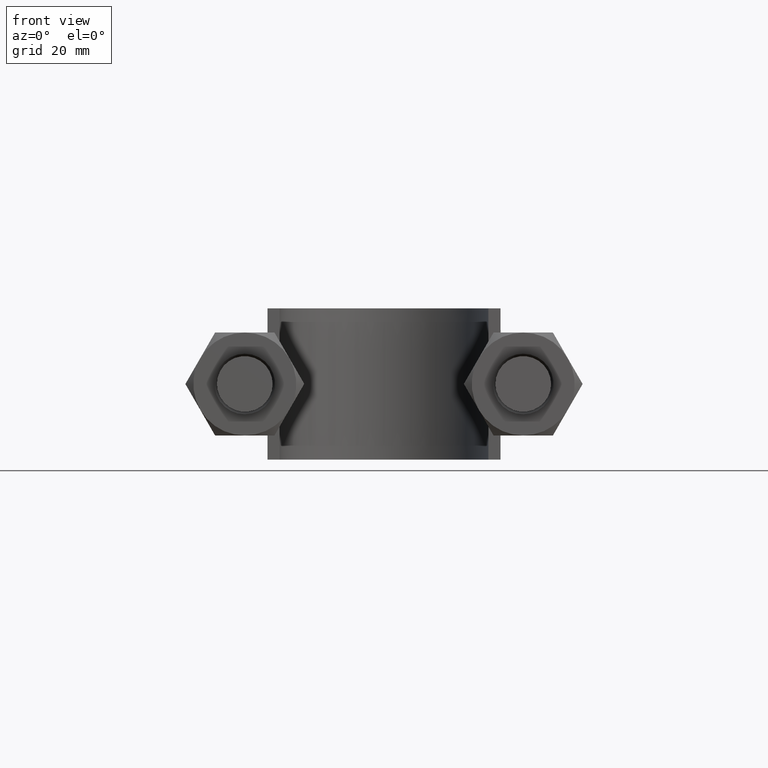
[diagram: clean part render]
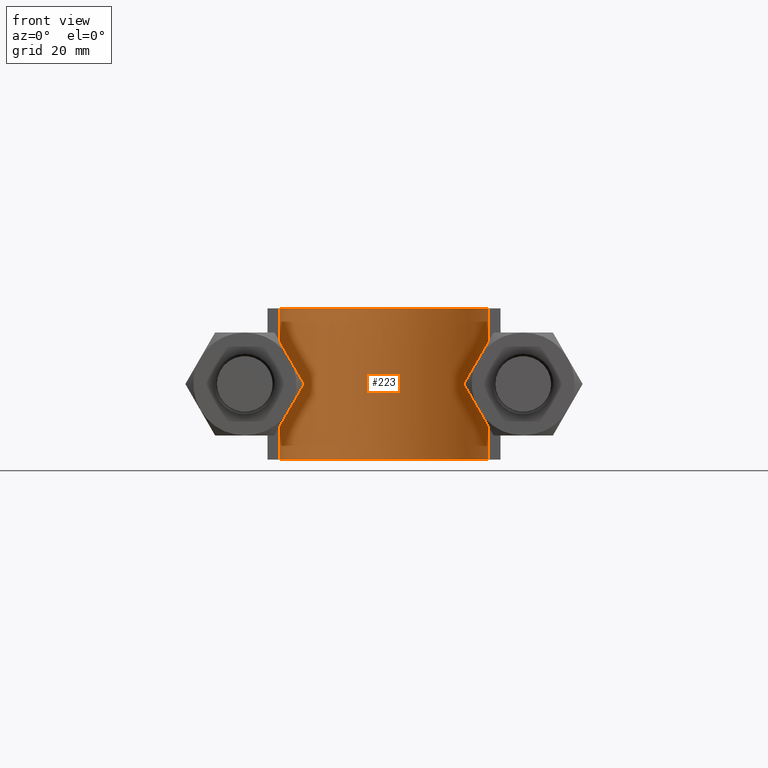
[diagram: same view with one face highlighted and labeled with its STEP entity id]
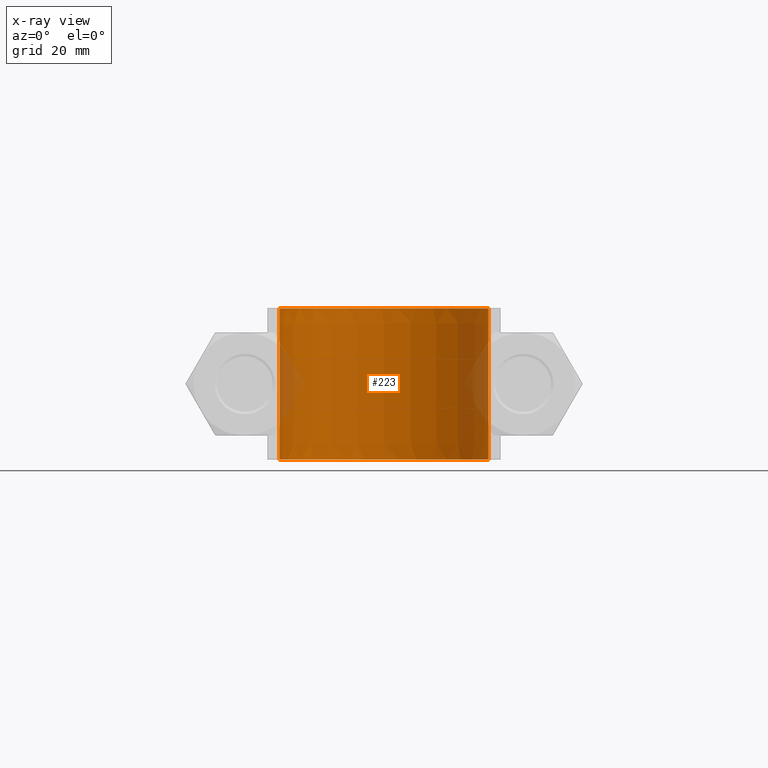
[diagram: x-ray of the same camera — body ghosted, the highlighted face saturated]
A machine part, front view. The second image highlights one B-rep face of the part: STEP entity #223.
The next image is the same camera in x-ray: the body ghosted, the highlighted face saturated — about 7% of this face is hidden behind the body in this view.
In plain terms, the highlighted face is a SurfaceOfExtrusion surface.
Its self-contained STEP definition (entity closure, byte-faithful):
#223 = ADVANCED_FACE( '', ( #305 ), #306, .T. );
#305 = FACE_OUTER_BOUND( '', #1003, .T. );
#306 = SURFACE_OF_LINEAR_EXTRUSION( '', #1004, #1005 );
#1003 = EDGE_LOOP( '', ( #1491, #1492, #1493, #1494 ) );
#1004 = B_SPLINE_CURVE_WITH_KNOTS( '', 3, ( #1495, #1496, #1497, #1498, #1499, #1500, #1501, #1502, #1503, #1504, #1505, #1506, #1507, #1508, #1509, #1510, #1511 ), .UNSPECIFIED., .F., .F., ( 4, 3, 1, 1, 1, 1, 1, 1, 1, 3, 4 ), ( 0.138743455497382, 1.00000000000000, 1.50000000000000, 2.00000000000000, 3.00000000000000, 4.00000000000000, 5.00000000000000, 6.00000000000000, 6.50000000000000, 7.00000000000000, 7.86125654450262 ), .UNSPECIFIED. );
#1005 = VECTOR( '', #1512, 1000.00000000000 );
#1491 = ORIENTED_EDGE( '', *, *, #2013, .F. );
#1492 = ORIENTED_EDGE( '', *, *, #2003, .F. );
#1493 = ORIENTED_EDGE( '', *, *, #2008, .T. );
#1494 = ORIENTED_EDGE( '', *, *, #2015, .T. );
#1495 = CARTESIAN_POINT( '', ( -17.2500000000000, 53.3000000000000, -69.9996733561149 ) );
#1496 = CARTESIAN_POINT( '', ( -17.2500000000000, 58.7833333333333, -69.9996733561149 ) );
#1497 = CARTESIAN_POINT( '', ( -17.2500000000000, 64.2666666666667, -69.9996733561149 ) );
#1498 = CARTESIAN_POINT( '', ( -17.2500000000000, 69.7500000000000, -69.9996733561149 ) );
#1499 = CARTESIAN_POINT( '', ( -17.2500000000000, 71.2426934616576, -69.9996733561149 ) );
#1500 = CARTESIAN_POINT( '', ( -16.8447140772576, 74.2689573264767, -69.9996733561149 ) );
#1501 = CARTESIAN_POINT( '', ( -14.5369669940350, 79.8768798182963, -69.9996733561149 ) );
#1502 = CARTESIAN_POINT( '', ( -9.02779989662052, 85.3882950029496, -69.9996733561149 ) );
#1503 = CARTESIAN_POINT( '', ( 1.07527604872484E-014, 87.8058524985252, -69.9996733561149 ) );
#1504 = CARTESIAN_POINT( '', ( 9.02779989662053, 85.3882950029496, -69.9996733561149 ) );
#1505 = CARTESIAN_POINT( '', ( 14.5369669940350, 79.8768798182963, -69.9996733561149 ) );
#1506 = CARTESIAN_POINT( '', ( 16.8447140772576, 74.2689573264767, -69.9996733561149 ) );
#1507 = CARTESIAN_POINT( '', ( 17.2500000000000, 71.2426934616576, -69.9996733561149 ) );
#1508 = CARTESIAN_POINT( '', ( 17.2500000000000, 69.7500000000000, -69.9996733561149 ) );
#1509 = CARTESIAN_POINT( '', ( 17.2500000000000, 64.2666666666667, -69.9996733561149 ) );
#1510 = CARTESIAN_POINT( '', ( 17.2500000000000, 58.7833333333333, -69.9996733561149 ) );
#1511 = CARTESIAN_POINT( '', ( 17.2500000000000, 53.3000000000000, -69.9996733561149 ) );
#1512 = DIRECTION( '', ( 0.000000000000000, 0.000000000000000, 1.00000000000000 ) );
#2003 = EDGE_CURVE( '', #2155, #2156, #2157, .T. );
#2008 = EDGE_CURVE( '', #2155, #2165, #2166, .T. );
#2013 = EDGE_CURVE( '', #2156, #2173, #2174, .T. );
#2015 = EDGE_CURVE( '', #2165, #2173, #2176, .T. );
#2155 = VERTEX_POINT( '', #2405 );
#2156 = VERTEX_POINT( '', #2406 );
#2157 = LINE( '', #2407, #2408 );
#2165 = VERTEX_POINT( '', #2457 );
#2166 = B_SPLINE_CURVE_WITH_KNOTS( '', 3, ( #2458, #2459, #2460, #2461, #2462, #2463, #2464, #2465, #2466, #2467, #2468, #2469, #2470, #2471, #2472, #2473, #2474 ), .UNSPECIFIED., .F., .F., ( 4, 3, 1, 1, 1, 1, 1, 1, 1, 3, 4 ), ( 0.138743455497382, 1.00000000000000, 1.50000000000000, 2.00000000000000, 3.00000000000000, 4.00000000000000, 5.00000000000000, 6.00000000000000, 6.50000000000000, 7.00000000000000, 7.86125654450262 ), .UNSPECIFIED. );
#2173 = VERTEX_POINT( '', #2544 );
#2174 = B_SPLINE_CURVE_WITH_KNOTS( '', 3, ( #2545, #2546, #2547, #2548, #2549, #2550, #2551, #2552, #2553, #2554, #2555, #2556, #2557, #2558, #2559, #2560, #2561 ), .UNSPECIFIED., .F., .F., ( 4, 3, 1, 1, 1, 1, 1, 1, 1, 3, 4 ), ( 0.138743455497382, 1.00000000000000, 1.50000000000000, 2.00000000000000, 3.00000000000000, 4.00000000000000, 5.00000000000000, 6.00000000000000, 6.50000000000000, 7.00000000000000, 7.86125654450262 ), .UNSPECIFIED. );
#2176 = LINE( '', #2564, #2565 );
#2405 = CARTESIAN_POINT( '', ( -17.2500000000000, 53.3000000000000, -12.5000000000000 ) );
#2406 = CARTESIAN_POINT( '', ( -17.2500000000000, 53.3000000000000, 12.5000000000000 ) );
#2407 = CARTESIAN_POINT( '', ( -17.2500000000000, 53.3000000000000, -69.9996733561149 ) );
#2408 = VECTOR( '', #3001, 1000.00000000000 );
#2457 = CARTESIAN_POINT( '', ( 17.2500000000000, 53.3000000000000, -12.5000000000000 ) );
#2458 = CARTESIAN_POINT( '', ( -17.2500000000000, 53.3000000000000, -12.5000000000000 ) );
#2459 = CARTESIAN_POINT( '', ( -17.2500000000000, 58.7833333333333, -12.5000000000000 ) );
#2460 = CARTESIAN_POINT( '', ( -17.2500000000000, 64.2666666666667, -12.5000000000000 ) );
#2461 = CARTESIAN_POINT( '', ( -17.2500000000000, 69.7500000000000, -12.5000000000000 ) );
#2462 = CARTESIAN_POINT( '', ( -17.2500000000000, 71.2426934616576, -12.5000000000000 ) );
#2463 = CARTESIAN_POINT( '', ( -16.8447140772576, 74.2689573264767, -12.5000000000000 ) );
#2464 = CARTESIAN_POINT( '', ( -14.5369669940350, 79.8768798182963, -12.5000000000000 ) );
#2465 = CARTESIAN_POINT( '', ( -9.02779989662052, 85.3882950029496, -12.5000000000000 ) );
#2466 = CARTESIAN_POINT( '', ( 1.07527604872484E-014, 87.8058524985252, -12.5000000000000 ) );
#2467 = CARTESIAN_POINT( '', ( 9.02779989662053, 85.3882950029496, -12.5000000000000 ) );
#2468 = CARTESIAN_POINT( '', ( 14.5369669940350, 79.8768798182963, -12.5000000000000 ) );
#2469 = CARTESIAN_POINT( '', ( 16.8447140772576, 74.2689573264767, -12.5000000000000 ) );
#2470 = CARTESIAN_POINT( '', ( 17.2500000000000, 71.2426934616576, -12.5000000000000 ) );
#2471 = CARTESIAN_POINT( '', ( 17.2500000000000, 69.7500000000000, -12.5000000000000 ) );
#2472 = CARTESIAN_POINT( '', ( 17.2500000000000, 64.2666666666667, -12.5000000000000 ) );
#2473 = CARTESIAN_POINT( '', ( 17.2500000000000, 58.7833333333333, -12.5000000000000 ) );
#2474 = CARTESIAN_POINT( '', ( 17.2500000000000, 53.3000000000000, -12.5000000000000 ) );
#2544 = CARTESIAN_POINT( '', ( 17.2500000000000, 53.3000000000000, 12.5000000000000 ) );
#2545 = CARTESIAN_POINT( '', ( -17.2500000000000, 53.3000000000000, 12.5000000000000 ) );
#2546 = CARTESIAN_POINT( '', ( -17.2500000000000, 58.7833333333333, 12.5000000000000 ) );
#2547 = CARTESIAN_POINT( '', ( -17.2500000000000, 64.2666666666667, 12.5000000000000 ) );
#2548 = CARTESIAN_POINT( '', ( -17.2500000000000, 69.7500000000000, 12.5000000000000 ) );
#2549 = CARTESIAN_POINT( '', ( -17.2500000000000, 71.2426934616576, 12.5000000000000 ) );
#2550 = CARTESIAN_POINT( '', ( -16.8447140772576, 74.2689573264767, 12.5000000000000 ) );
#2551 = CARTESIAN_POINT( '', ( -14.5369669940350, 79.8768798182963, 12.5000000000000 ) );
#2552 = CARTESIAN_POINT( '', ( -9.02779989662052, 85.3882950029496, 12.5000000000000 ) );
#2553 = CARTESIAN_POINT( '', ( 1.07527604872484E-014, 87.8058524985252, 12.5000000000000 ) );
#2554 = CARTESIAN_POINT( '', ( 9.02779989662053, 85.3882950029496, 12.5000000000000 ) );
#2555 = CARTESIAN_POINT( '', ( 14.5369669940350, 79.8768798182963, 12.5000000000000 ) );
#2556 = CARTESIAN_POINT( '', ( 16.8447140772576, 74.2689573264767, 12.5000000000000 ) );
#2557 = CARTESIAN_POINT( '', ( 17.2500000000000, 71.2426934616576, 12.5000000000000 ) );
#2558 = CARTESIAN_POINT( '', ( 17.2500000000000, 69.7500000000000, 12.5000000000000 ) );
#2559 = CARTESIAN_POINT( '', ( 17.2500000000000, 64.2666666666667, 12.5000000000000 ) );
#2560 = CARTESIAN_POINT( '', ( 17.2500000000000, 58.7833333333333, 12.5000000000000 ) );
#2561 = CARTESIAN_POINT( '', ( 17.2500000000000, 53.3000000000000, 12.5000000000000 ) );
#2564 = CARTESIAN_POINT( '', ( 17.2500000000000, 53.3000000000000, -69.9996733561149 ) );
#2565 = VECTOR( '', #3006, 1000.00000000000 );
#3001 = DIRECTION( '', ( 0.000000000000000, 0.000000000000000, 1.00000000000000 ) );
#3006 = DIRECTION( '', ( 0.000000000000000, 0.000000000000000, 1.00000000000000 ) );